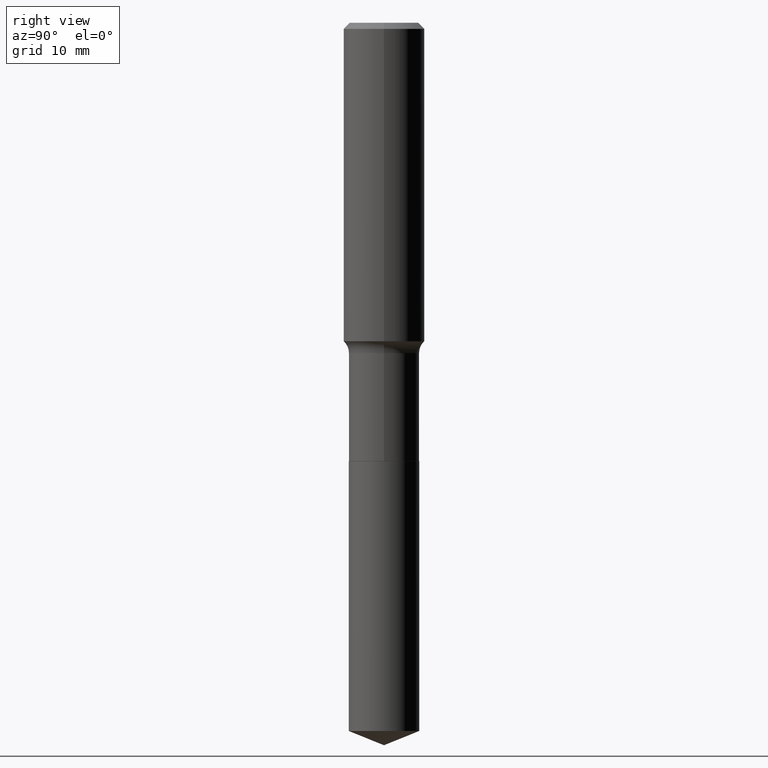
[diagram: clean part render]
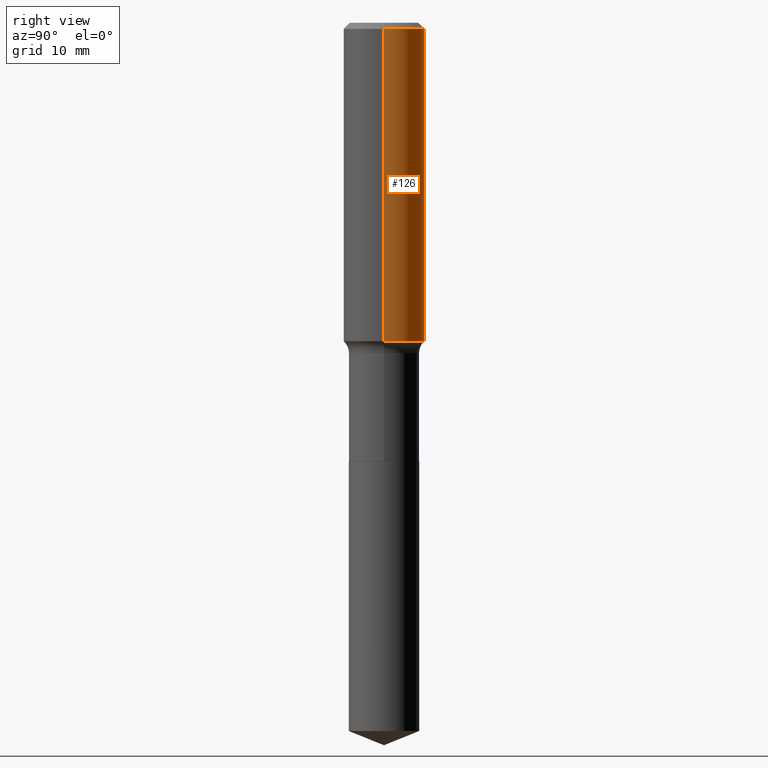
[diagram: same view with one face highlighted and labeled with its STEP entity id]
A machine part, right view. The second image highlights one B-rep face of the part: STEP entity #126.
In plain terms, the highlighted cylindrical surface (partial cylindrical patch) has radius 5 mm, axis along (-0, 0, 1).
Its self-contained STEP definition (entity closure, byte-faithful):
#20 = LINE ( 'NONE', #434, #363 ) ;
#23 = CARTESIAN_POINT ( 'NONE',  ( 0.1968500000000002470, -6.766569378089535808E-15, -1.544322495727142641 ) ) ;
#24 = VECTOR ( 'NONE', #76, 39.37007874015748143 ) ;
#36 = ORIENTED_EDGE ( 'NONE', *, *, #405, .T. ) ;
#39 = ORIENTED_EDGE ( 'NONE', *, *, #256, .F. ) ;
#44 = FACE_OUTER_BOUND ( 'NONE', #226, .T. ) ;
#65 = ORIENTED_EDGE ( 'NONE', *, *, #102, .F. ) ;
#71 = VERTEX_POINT ( 'NONE', #23 ) ;
#76 = DIRECTION ( 'NONE',  ( -2.445468806185136877E-29, 3.491481338843145188E-15, 1.000000000000000000 ) ) ;
#81 = EDGE_CURVE ( 'NONE', #191, #268, #316, .T. ) ;
#94 = CARTESIAN_POINT ( 'NONE',  ( -0.1968500000000002470, -3.993269799643232468E-15, -1.544322495727142641 ) ) ;
#102 = EDGE_CURVE ( 'NONE', #71, #177, #20, .T. ) ;
#116 = DIRECTION ( 'NONE',  ( 1.000000000000000000, -6.982962677686269866E-15, 0.000000000000000000 ) ) ;
#122 = AXIS2_PLACEMENT_3D ( 'NONE', #179, #470, #116 ) ;
#126 = ADVANCED_FACE ( 'NONE', ( #44 ), #201, .T. ) ;
#132 = CIRCLE ( 'NONE', #386, 0.1968500000000000527 ) ;
#138 = CIRCLE ( 'NONE', #122, 0.1968500000000002470 ) ;
#161 = CARTESIAN_POINT ( 'NONE',  ( 7.220858017463209485E-31, -1.030947152326916609E-16, -0.02952750000000019595 ) ) ;
#164 = DIRECTION ( 'NONE',  ( -2.445468806185136877E-29, 3.491481338843145188E-15, 1.000000000000000000 ) ) ;
#177 = VERTEX_POINT ( 'NONE', #467 ) ;
#179 = CARTESIAN_POINT ( 'NONE',  ( 3.776592489990706683E-29, -5.391973174986991833E-15, -1.544322495727142641 ) ) ;
#191 = VERTEX_POINT ( 'NONE', #94 ) ;
#201 = CYLINDRICAL_SURFACE ( 'NONE', #482, 0.1968500000000001360 ) ;
#207 = CARTESIAN_POINT ( 'NONE',  ( 0.000000000000000000, 0.000000000000000000, 0.000000000000000000 ) ) ;
#210 = CARTESIAN_POINT ( 'NONE',  ( -0.1968500000000000527, -1.348830569766083183E-15, -0.02952750000000019595 ) ) ;
#226 = EDGE_LOOP ( 'NONE', ( #36, #234, #39, #65 ) ) ;
#234 = ORIENTED_EDGE ( 'NONE', *, *, #81, .T. ) ;
#242 = DIRECTION ( 'NONE',  ( -2.445468806185136597E-29, 3.491481338843145583E-15, 1.000000000000000000 ) ) ;
#256 = EDGE_CURVE ( 'NONE', #177, #268, #132, .T. ) ;
#268 = VERTEX_POINT ( 'NONE', #210 ) ;
#316 = LINE ( 'NONE', #358, #24 ) ;
#358 = CARTESIAN_POINT ( 'NONE',  ( -0.1968500000000001360, 1.398703375343758182E-15, -9.682923725166790684E-30 ) ) ;
#363 = VECTOR ( 'NONE', #164, 39.37007874015748143 ) ;
#386 = AXIS2_PLACEMENT_3D ( 'NONE', #161, #242, #471 ) ;
#392 = DIRECTION ( 'NONE',  ( -2.445468806185136597E-29, 3.491481338843145583E-15, 1.000000000000000000 ) ) ;
#405 = EDGE_CURVE ( 'NONE', #71, #191, #138, .T. ) ;
#434 = CARTESIAN_POINT ( 'NONE',  ( 0.1968500000000001360, -1.374596203102542594E-15, 9.598753983154306463E-30 ) ) ;
#467 = CARTESIAN_POINT ( 'NONE',  ( 0.1968500000000000527, -1.477690918335233688E-15, -0.02952750000000019595 ) ) ;
#469 = DIRECTION ( 'NONE',  ( 1.000000000000000000, -6.982962677686266711E-15, 4.876176775795935793E-29 ) ) ;
#470 = DIRECTION ( 'NONE',  ( -2.445468806185136597E-29, 3.491481338843145583E-15, 1.000000000000000000 ) ) ;
#471 = DIRECTION ( 'NONE',  ( 1.000000000000000000, -6.982962677686266711E-15, 0.000000000000000000 ) ) ;
#482 = AXIS2_PLACEMENT_3D ( 'NONE', #207, #392, #469 ) ;